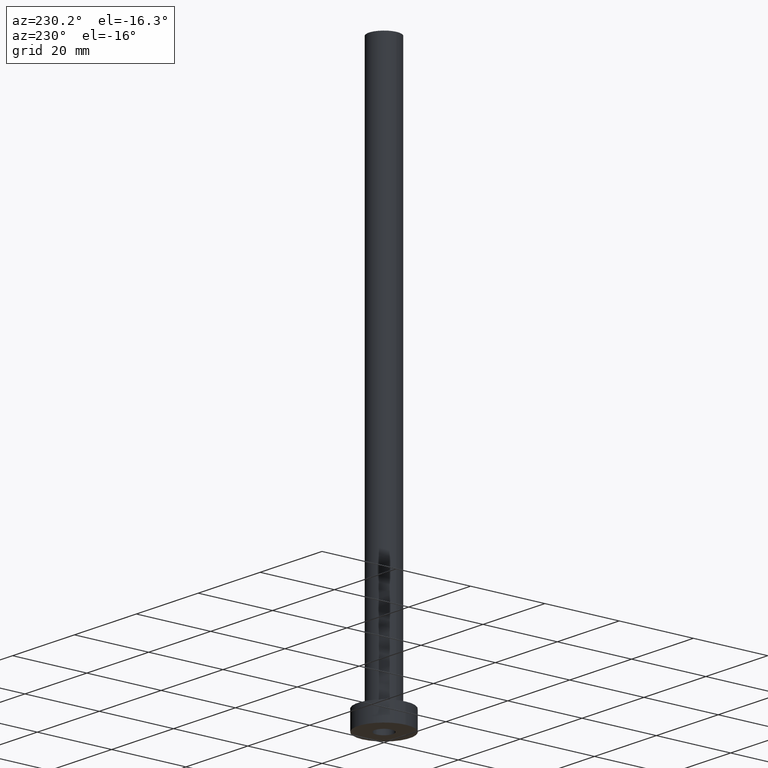
[diagram: clean part render]
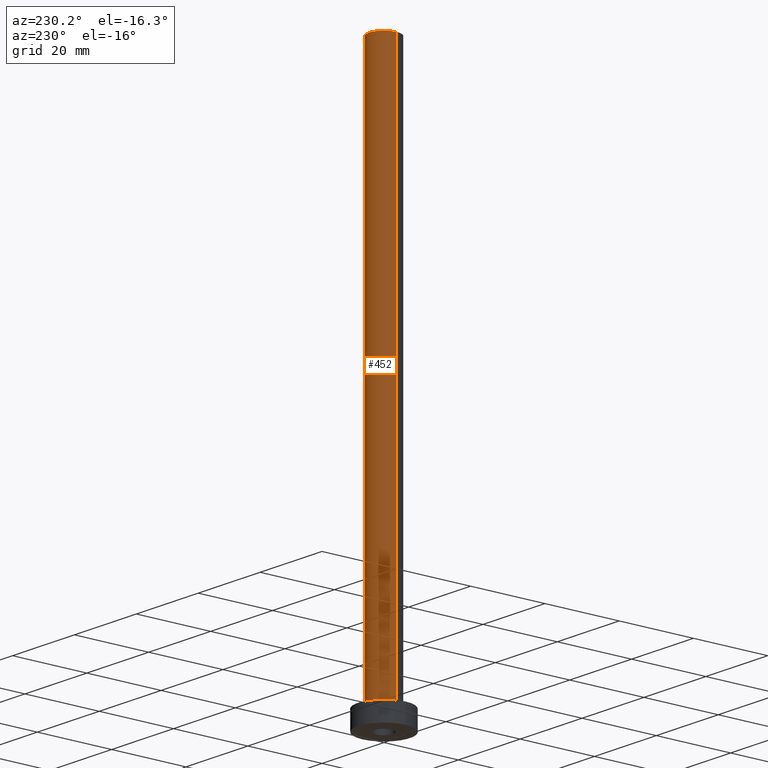
[diagram: same view with one face highlighted and labeled with its STEP entity id]
A machine part, auxiliary view. The second image highlights one B-rep face of the part: STEP entity #452.
In plain terms, the highlighted cylindrical surface (edge-blend (fillet) strip) has radius 4 mm, axis along (-0, -0, -1).
Its self-contained STEP definition (entity closure, byte-faithful):
#14 = VERTEX_POINT ( 'NONE', #412 ) ;
#15 = CARTESIAN_POINT ( 'NONE',  ( 0.000000000000000000, 0.000000000000000000, 5.500000000000005329 ) ) ;
#40 = VERTEX_POINT ( 'NONE', #450 ) ;
#50 = CARTESIAN_POINT ( 'NONE',  ( 0.000000000000000000, 0.000000000000000000, 150.0000000000000000 ) ) ;
#57 = VECTOR ( 'NONE', #327, 1000.000000000000000 ) ;
#65 = CIRCLE ( 'NONE', #432, 4.000000000000000000 ) ;
#76 = DIRECTION ( 'NONE',  ( -0.000000000000000000, -0.000000000000000000, -1.000000000000000000 ) ) ;
#79 = FACE_OUTER_BOUND ( 'NONE', #419, .T. ) ;
#112 = ORIENTED_EDGE ( 'NONE', *, *, #268, .T. ) ;
#120 = DIRECTION ( 'NONE',  ( 0.000000000000000000, 0.000000000000000000, 1.000000000000000000 ) ) ;
#146 = ORIENTED_EDGE ( 'NONE', *, *, #227, .F. ) ;
#157 = DIRECTION ( 'NONE',  ( 1.000000000000000000, 0.000000000000000000, 0.000000000000000000 ) ) ;
#160 = LINE ( 'NONE', #286, #57 ) ;
#161 = EDGE_CURVE ( 'NONE', #14, #423, #357, .T. ) ;
#163 = AXIS2_PLACEMENT_3D ( 'NONE', #15, #367, #157 ) ;
#227 = EDGE_CURVE ( 'NONE', #40, #14, #65, .T. ) ;
#245 = EDGE_CURVE ( 'NONE', #396, #423, #267, .T. ) ;
#247 = DIRECTION ( 'NONE',  ( 1.000000000000000000, 0.000000000000000000, 0.000000000000000000 ) ) ;
#267 = CIRCLE ( 'NONE', #163, 4.000000000000000000 ) ;
#268 = EDGE_CURVE ( 'NONE', #40, #396, #160, .T. ) ;
#272 = ORIENTED_EDGE ( 'NONE', *, *, #245, .T. ) ;
#283 = CYLINDRICAL_SURFACE ( 'NONE', #381, 4.000000000000000000 ) ;
#286 = CARTESIAN_POINT ( 'NONE',  ( 4.000000000000000000, 4.898587196589412829E-16, 150.0000000000000000 ) ) ;
#288 = DIRECTION ( 'NONE',  ( -1.000000000000000000, 0.000000000000000000, 0.000000000000000000 ) ) ;
#300 = ORIENTED_EDGE ( 'NONE', *, *, #161, .F. ) ;
#327 = DIRECTION ( 'NONE',  ( -0.000000000000000000, -0.000000000000000000, -1.000000000000000000 ) ) ;
#346 = VECTOR ( 'NONE', #76, 1000.000000000000000 ) ;
#357 = LINE ( 'NONE', #394, #346 ) ;
#367 = DIRECTION ( 'NONE',  ( 0.000000000000000000, 0.000000000000000000, 1.000000000000000000 ) ) ;
#381 = AXIS2_PLACEMENT_3D ( 'NONE', #50, #441, #288 ) ;
#393 = CARTESIAN_POINT ( 'NONE',  ( 4.000000000000000000, 4.898587196589412829E-16, 5.500000000000005329 ) ) ;
#394 = CARTESIAN_POINT ( 'NONE',  ( -4.000000000000000000, 0.000000000000000000, 150.0000000000000000 ) ) ;
#396 = VERTEX_POINT ( 'NONE', #393 ) ;
#412 = CARTESIAN_POINT ( 'NONE',  ( -4.000000000000000000, 0.000000000000000000, 150.0000000000000000 ) ) ;
#419 = EDGE_LOOP ( 'NONE', ( #146, #112, #272, #300 ) ) ;
#423 = VERTEX_POINT ( 'NONE', #435 ) ;
#432 = AXIS2_PLACEMENT_3D ( 'NONE', #433, #120, #247 ) ;
#433 = CARTESIAN_POINT ( 'NONE',  ( 0.000000000000000000, 0.000000000000000000, 150.0000000000000000 ) ) ;
#435 = CARTESIAN_POINT ( 'NONE',  ( -4.000000000000000000, 0.000000000000000000, 5.500000000000005329 ) ) ;
#441 = DIRECTION ( 'NONE',  ( -0.000000000000000000, -0.000000000000000000, -1.000000000000000000 ) ) ;
#450 = CARTESIAN_POINT ( 'NONE',  ( 4.000000000000000000, 4.898587196589412829E-16, 150.0000000000000000 ) ) ;
#452 = ADVANCED_FACE ( 'NONE', ( #79 ), #283, .T. ) ;